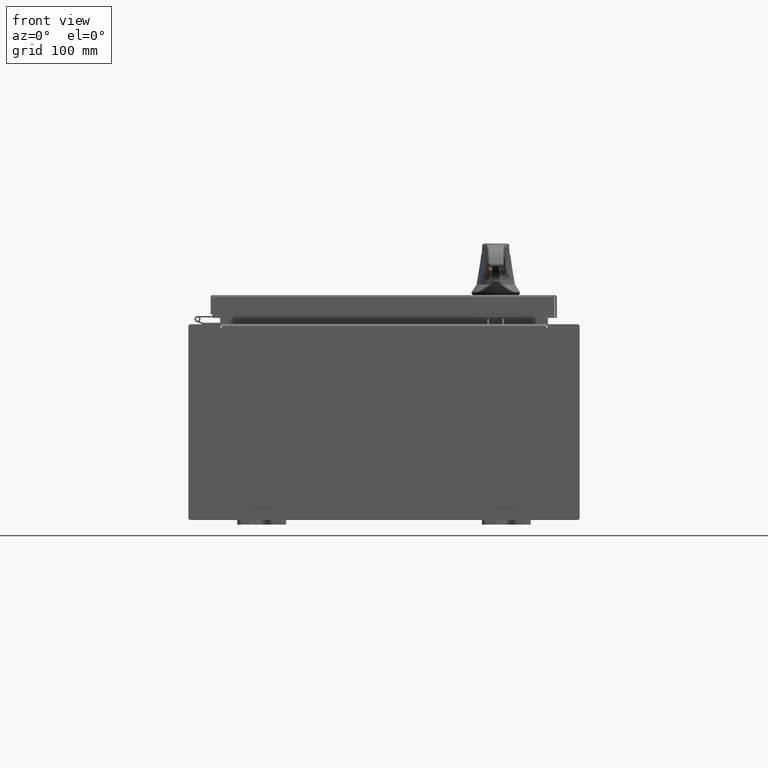
[diagram: clean part render]
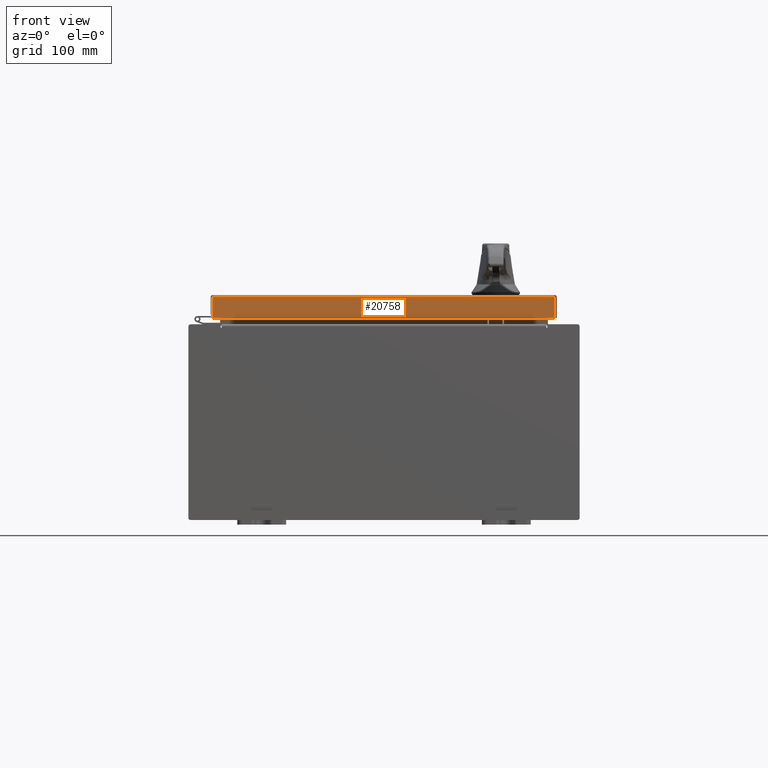
[diagram: same view with one face highlighted and labeled with its STEP entity id]
A machine part, front view. The second image highlights one B-rep face of the part: STEP entity #20758.
In plain terms, the highlighted planar face has unit normal (-0, 1, -0).
Its self-contained STEP definition (entity closure, byte-faithful):
#4280 = VECTOR ( 'NONE', #99949, 39.37007874015748100 ) ;
#6709 = CARTESIAN_POINT ( 'NONE',  ( -6.989157864376266200, -9.094000000000001200, -0.9376999999999979800 ) ) ;
#7779 = LINE ( 'NONE', #24968, #27572 ) ;
#8349 = DIRECTION ( 'NONE',  ( -1.000000000000000000, -8.758115402030108600E-047, 1.254380613084042800E-016 ) ) ;
#13674 = VERTEX_POINT ( 'NONE', #6709 ) ;
#14973 = VERTEX_POINT ( 'NONE', #94617 ) ;
#15893 = CARTESIAN_POINT ( 'NONE',  ( -6.989157864376266200, -9.093999999999999400, 3.480555384750563100E-014 ) ) ;
#19640 = VECTOR ( 'NONE', #39636, 39.37007874015748100 ) ;
#20758 = ADVANCED_FACE ( 'NONE', ( #47522 ), #35415, .F. ) ;
#24968 = CARTESIAN_POINT ( 'NONE',  ( 7.078000000000002100, -9.094000000000001200, -0.9376999999999997600 ) ) ;
#27423 = ORIENTED_EDGE ( 'NONE', *, *, #105955, .T. ) ;
#27572 = VECTOR ( 'NONE', #8349, 39.37007874015748100 ) ;
#29861 = CARTESIAN_POINT ( 'NONE',  ( -6.989157864376266200, -9.093999999999999400, -0.08769999999999997200 ) ) ;
#34164 = CARTESIAN_POINT ( 'NONE',  ( 7.078000000000002100, -9.093999999999999400, -0.08769999999999997200 ) ) ;
#35415 = PLANE ( 'NONE',  #57154 ) ;
#39636 = DIRECTION ( 'NONE',  ( -0.0000000000000000000, -3.798629886902798700E-015, -1.000000000000000000 ) ) ;
#40529 = EDGE_CURVE ( 'NONE', #49763, #13674, #7779, .T. ) ;
#43929 = DIRECTION ( 'NONE',  ( 0.0000000000000000000, 3.798629886902798700E-015, 1.000000000000000000 ) ) ;
#45878 = ORIENTED_EDGE ( 'NONE', *, *, #40529, .F. ) ;
#47427 = VECTOR ( 'NONE', #84679, 39.37007874015748100 ) ;
#47522 = FACE_OUTER_BOUND ( 'NONE', #68506, .T. ) ;
#48117 = CARTESIAN_POINT ( 'NONE',  ( 6.989157864376271500, -9.093999999999999400, -0.07469999999999972500 ) ) ;
#49763 = VERTEX_POINT ( 'NONE', #81706 ) ;
#52271 = ORIENTED_EDGE ( 'NONE', *, *, #52571, .F. ) ;
#52571 = EDGE_CURVE ( 'NONE', #69635, #14973, #69856, .T. ) ;
#57154 = AXIS2_PLACEMENT_3D ( 'NONE', #77404, #69004, #43929 ) ;
#67179 = LINE ( 'NONE', #48117, #19640 ) ;
#68506 = EDGE_LOOP ( 'NONE', ( #52271, #27423, #45878, #108384 ) ) ;
#69004 = DIRECTION ( 'NONE',  ( -4.764927686412501300E-031, 1.000000000000000000, -3.798629886902798700E-015 ) ) ;
#69635 = VERTEX_POINT ( 'NONE', #29861 ) ;
#69856 = LINE ( 'NONE', #34164, #47427 ) ;
#71588 = LINE ( 'NONE', #15893, #4280 ) ;
#77404 = CARTESIAN_POINT ( 'NONE',  ( 4.333225238023527900E-030, -9.093999999999999400, 3.480555384750563100E-014 ) ) ;
#81706 = CARTESIAN_POINT ( 'NONE',  ( 6.989157864376271500, -9.094000000000001200, -0.9376999999999997600 ) ) ;
#84506 = EDGE_CURVE ( 'NONE', #14973, #49763, #67179, .T. ) ;
#84679 = DIRECTION ( 'NONE',  ( 1.000000000000000000, 4.764927686412501300E-031, -1.827821792760540600E-045 ) ) ;
#94617 = CARTESIAN_POINT ( 'NONE',  ( 6.989157864376271500, -9.093999999999999400, -0.08769999999999997200 ) ) ;
#99949 = DIRECTION ( 'NONE',  ( 0.0000000000000000000, -3.798629886902798700E-015, -1.000000000000000000 ) ) ;
#105955 = EDGE_CURVE ( 'NONE', #69635, #13674, #71588, .T. ) ;
#108384 = ORIENTED_EDGE ( 'NONE', *, *, #84506, .F. ) ;